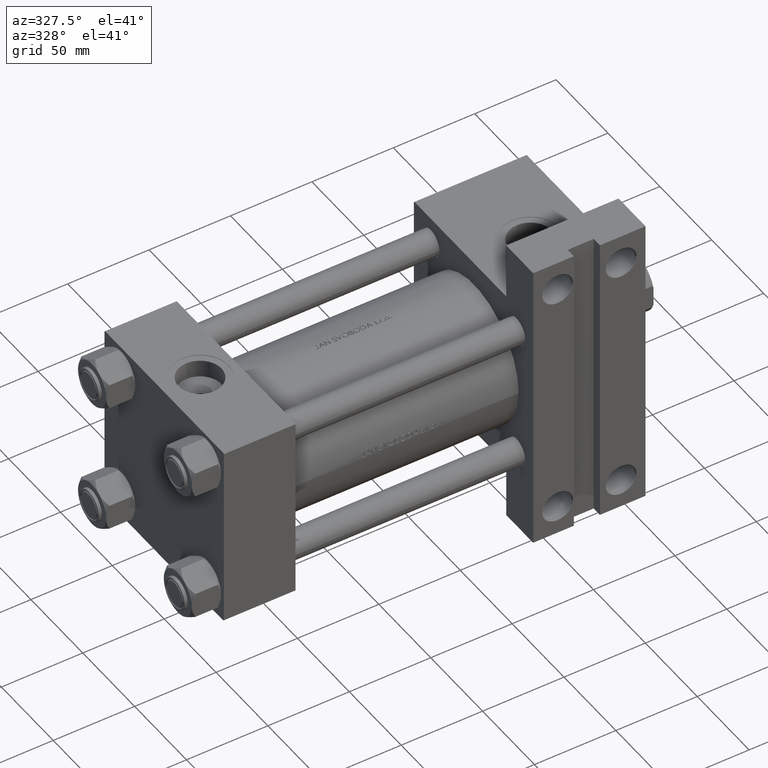
[diagram: clean part render]
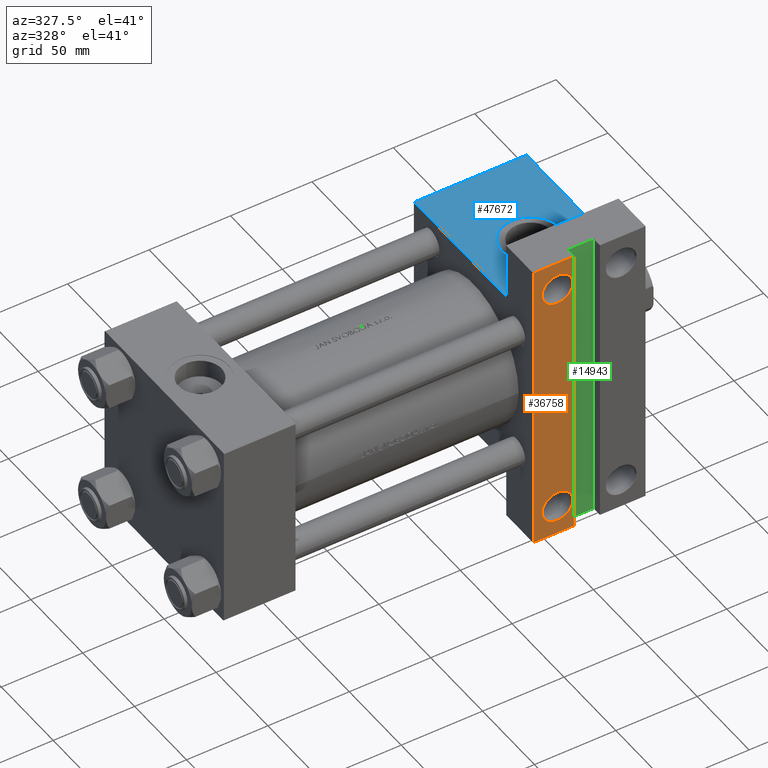
[diagram: same view with three faces highlighted in distinct colors, each labeled with its STEP entity id]
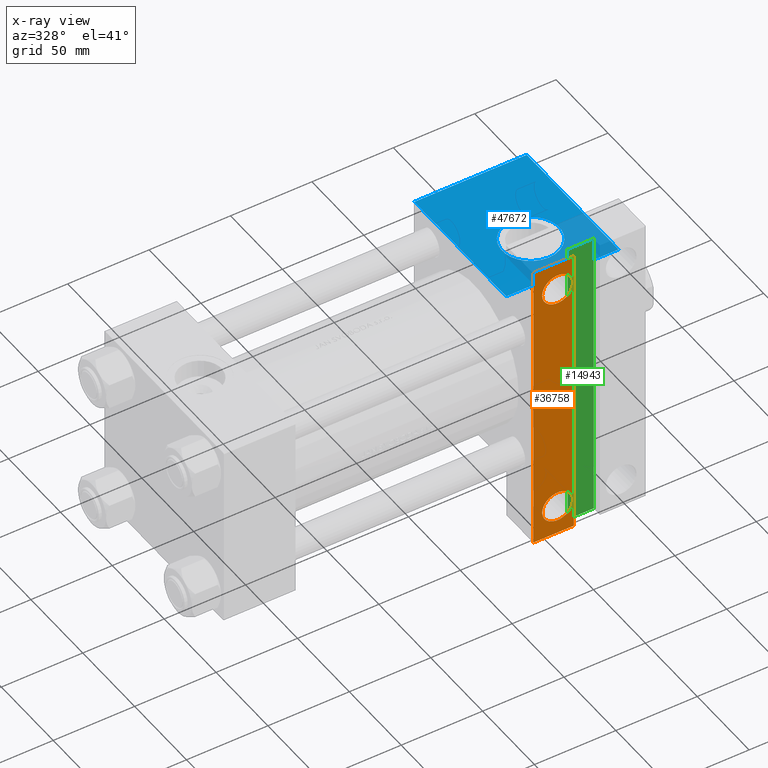
[diagram: x-ray of the same camera — body ghosted, the three highlighted faces saturated]
A machine part, auxiliary view with three faces highlighted in distinct colors.
The next image is the same camera in x-ray (body ghosted, the three faces saturated) — at least one of them is partly hidden behind the body in this view.
Their STEP definitions:

[orange] entity #36758 — the highlighted planar face has unit normal (0, -1, -0).
#1231 = FACE_BOUND ( 'NONE', #15356, .T. ) ;
#1783 = CARTESIAN_POINT ( 'NONE',  ( 214.4994999999999834, 74.50000000000001421, -57.49999999999996447 ) ) ;
#1895 = VECTOR ( 'NONE', #32173, 1000.000000000000000 ) ;
#1971 = EDGE_CURVE ( 'NONE', #38902, #10682, #19106, .T. ) ;
#2183 = CARTESIAN_POINT ( 'NONE',  ( 195.5005000000000450, -74.50000000000001421, -57.49999999999997868 ) ) ;
#2324 = EDGE_CURVE ( 'NONE', #46423, #10682, #31947, .T. ) ;
#2639 = VERTEX_POINT ( 'NONE', #2183 ) ;
#2747 = EDGE_CURVE ( 'NONE', #20262, #11767, #46171, .T. ) ;
#3040 = ORIENTED_EDGE ( 'NONE', *, *, #24185, .T. ) ;
#3435 = DIRECTION ( 'NONE',  ( 0.000000000000000000, 1.000000000000000000, 0.000000000000000000 ) ) ;
#5877 = AXIS2_PLACEMENT_3D ( 'NONE', #10976, #29494, #3435 ) ;
#6817 = EDGE_CURVE ( 'NONE', #29614, #2639, #47878, .T. ) ;
#8618 = CARTESIAN_POINT ( 'NONE',  ( 190.0000000000000000, -92.50000000000002842, -57.49999999999997158 ) ) ;
#10682 = VERTEX_POINT ( 'NONE', #12532 ) ;
#10976 = CARTESIAN_POINT ( 'NONE',  ( 205.0000000000000284, 74.50000000000001421, -57.49999999999996447 ) ) ;
#11207 = DIRECTION ( 'NONE',  ( 0.000000000000000000, 1.000000000000000000, 0.000000000000000000 ) ) ;
#11767 = VERTEX_POINT ( 'NONE', #1783 ) ;
#12097 = DIRECTION ( 'NONE',  ( 0.000000000000000000, 1.000000000000000000, 0.000000000000000000 ) ) ;
#12196 = DIRECTION ( 'NONE',  ( 0.000000000000000000, 1.000000000000000000, 1.206764157201257291E-16 ) ) ;
#12481 = ORIENTED_EDGE ( 'NONE', *, *, #6817, .T. ) ;
#12532 = CARTESIAN_POINT ( 'NONE',  ( 190.0000000000000000, -92.50000000000002842, -57.49999999999997158 ) ) ;
#14474 = CIRCLE ( 'NONE', #32380, 9.499499999999965638 ) ;
#15356 = EDGE_LOOP ( 'NONE', ( #29746, #12481 ) ) ;
#16093 = CARTESIAN_POINT ( 'NONE',  ( 214.9999999999999716, -92.50000000000002842, -57.49999999999997158 ) ) ;
#16160 = DIRECTION ( 'NONE',  ( -0.000000000000000000, -1.206764157201257291E-16, 1.000000000000000000 ) ) ;
#16585 = CARTESIAN_POINT ( 'NONE',  ( 259.0000000000000000, 57.50000000000000000, -57.49999999999996447 ) ) ;
#17626 = ORIENTED_EDGE ( 'NONE', *, *, #2747, .T. ) ;
#19106 = LINE ( 'NONE', #8618, #22859 ) ;
#19406 = LINE ( 'NONE', #34250, #32793 ) ;
#19856 = CIRCLE ( 'NONE', #5877, 9.499499999999965638 ) ;
#20128 = DIRECTION ( 'NONE',  ( 1.000000000000000000, -4.022547190670858131E-16, 0.000000000000000000 ) ) ;
#20262 = VERTEX_POINT ( 'NONE', #27153 ) ;
#22760 = ORIENTED_EDGE ( 'NONE', *, *, #2324, .F. ) ;
#22859 = VECTOR ( 'NONE', #31023, 1000.000000000000000 ) ;
#23389 = VECTOR ( 'NONE', #11207, 1000.000000000000000 ) ;
#24185 = EDGE_CURVE ( 'NONE', #11767, #20262, #19856, .T. ) ;
#26336 = EDGE_CURVE ( 'NONE', #2639, #29614, #14474, .T. ) ;
#27153 = CARTESIAN_POINT ( 'NONE',  ( 195.5005000000000450, 74.50000000000001421, -57.49999999999996447 ) ) ;
#27156 = AXIS2_PLACEMENT_3D ( 'NONE', #16585, #35323, #12196 ) ;
#28321 = AXIS2_PLACEMENT_3D ( 'NONE', #40375, #36247, #43284 ) ;
#28495 = AXIS2_PLACEMENT_3D ( 'NONE', #30845, #42023, #12097 ) ;
#29494 = DIRECTION ( 'NONE',  ( -0.000000000000000000, -1.206764157201257291E-16, 1.000000000000000000 ) ) ;
#29614 = VERTEX_POINT ( 'NONE', #32313 ) ;
#29720 = CARTESIAN_POINT ( 'NONE',  ( 214.9999999999999716, -92.50000000000002842, -57.49999999999997158 ) ) ;
#29746 = ORIENTED_EDGE ( 'NONE', *, *, #26336, .T. ) ;
#30512 = EDGE_LOOP ( 'NONE', ( #17626, #3040 ) ) ;
#30796 = VERTEX_POINT ( 'NONE', #42480 ) ;
#30845 = CARTESIAN_POINT ( 'NONE',  ( 205.0000000000000284, -74.50000000000001421, -57.49999999999997868 ) ) ;
#31023 = DIRECTION ( 'NONE',  ( -1.000000000000000000, -0.000000000000000000, -0.000000000000000000 ) ) ;
#31947 = LINE ( 'NONE', #46997, #1895 ) ;
#32173 = DIRECTION ( 'NONE',  ( 0.000000000000000000, -1.000000000000000000, -1.206764157201257291E-16 ) ) ;
#32313 = CARTESIAN_POINT ( 'NONE',  ( 214.4994999999999834, -74.50000000000001421, -57.49999999999997868 ) ) ;
#32380 = AXIS2_PLACEMENT_3D ( 'NONE', #36877, #16160, #38082 ) ;
#32793 = VECTOR ( 'NONE', #20128, 1000.000000000000000 ) ;
#33129 = LINE ( 'NONE', #29720, #23389 ) ;
#34250 = CARTESIAN_POINT ( 'NONE',  ( 190.0000000000000284, 92.50000000000000000, -57.49999999999997158 ) ) ;
#34834 = FACE_OUTER_BOUND ( 'NONE', #42254, .T. ) ;
#35323 = DIRECTION ( 'NONE',  ( 0.000000000000000000, 1.206764157201257291E-16, -1.000000000000000000 ) ) ;
#35563 = FACE_BOUND ( 'NONE', #30512, .T. ) ;
#35905 = ORIENTED_EDGE ( 'NONE', *, *, #1971, .T. ) ;
#36247 = DIRECTION ( 'NONE',  ( -0.000000000000000000, -1.206764157201257291E-16, 1.000000000000000000 ) ) ;
#36758 = ADVANCED_FACE ( 'NONE', ( #34834, #35563, #1231 ), #45527, .T. ) ;
#36877 = CARTESIAN_POINT ( 'NONE',  ( 205.0000000000000284, -74.50000000000001421, -57.49999999999997868 ) ) ;
#38082 = DIRECTION ( 'NONE',  ( 0.000000000000000000, 1.000000000000000000, 0.000000000000000000 ) ) ;
#38902 = VERTEX_POINT ( 'NONE', #16093 ) ;
#40375 = CARTESIAN_POINT ( 'NONE',  ( 205.0000000000000284, 74.50000000000001421, -57.49999999999996447 ) ) ;
#41400 = EDGE_CURVE ( 'NONE', #38902, #30796, #33129, .T. ) ;
#42023 = DIRECTION ( 'NONE',  ( -0.000000000000000000, -1.206764157201257291E-16, 1.000000000000000000 ) ) ;
#42254 = EDGE_LOOP ( 'NONE', ( #43994, #35905, #22760, #47266 ) ) ;
#42480 = CARTESIAN_POINT ( 'NONE',  ( 214.9999999999999716, 92.50000000000000000, -57.49999999999997158 ) ) ;
#42687 = EDGE_CURVE ( 'NONE', #46423, #30796, #19406, .T. ) ;
#43284 = DIRECTION ( 'NONE',  ( 0.000000000000000000, 1.000000000000000000, 0.000000000000000000 ) ) ;
#43994 = ORIENTED_EDGE ( 'NONE', *, *, #41400, .F. ) ;
#45527 = PLANE ( 'NONE',  #27156 ) ;
#46171 = CIRCLE ( 'NONE', #28321, 9.499499999999965638 ) ;
#46409 = CARTESIAN_POINT ( 'NONE',  ( 190.0000000000000284, 92.50000000000000000, -57.49999999999997158 ) ) ;
#46423 = VERTEX_POINT ( 'NONE', #46409 ) ;
#46997 = CARTESIAN_POINT ( 'NONE',  ( 190.0000000000000000, 57.50000000000000000, -57.49999999999996447 ) ) ;
#47266 = ORIENTED_EDGE ( 'NONE', *, *, #42687, .T. ) ;
#47878 = CIRCLE ( 'NONE', #28495, 9.499499999999965638 ) ;

[blue] entity #47672 — the highlighted planar face has unit normal (0, 0, -1).
#1540 = VECTOR ( 'NONE', #40761, 1000.000000000000000 ) ;
#3074 = EDGE_LOOP ( 'NONE', ( #18186, #45624, #35368, #16023 ) ) ;
#3501 = ORIENTED_EDGE ( 'NONE', *, *, #8047, .F. ) ;
#3771 = CARTESIAN_POINT ( 'NONE',  ( 259.0000000000000000, -57.49999999999999289, 57.49999999999999289 ) ) ;
#4081 = VERTEX_POINT ( 'NONE', #35120 ) ;
#4488 = DIRECTION ( 'NONE',  ( -0.000000000000000000, 1.000000000000000000, 0.000000000000000000 ) ) ;
#5165 = CARTESIAN_POINT ( 'NONE',  ( 259.0000000000000000, -57.49999999999999289, 57.00000000000002132 ) ) ;
#7666 = FACE_OUTER_BOUND ( 'NONE', #3074, .T. ) ;
#8047 = EDGE_CURVE ( 'NONE', #33988, #4081, #28516, .T. ) ;
#8805 = LINE ( 'NONE', #5165, #12073 ) ;
#10113 = CARTESIAN_POINT ( 'NONE',  ( 259.0000000000000000, -57.49999999999999289, 57.00000000000002132 ) ) ;
#11552 = CARTESIAN_POINT ( 'NONE',  ( 190.0000000000000000, -57.49999999999999289, 57.49999999999999289 ) ) ;
#12073 = VECTOR ( 'NONE', #42882, 1000.000000000000000 ) ;
#13097 = VERTEX_POINT ( 'NONE', #39702 ) ;
#14035 = DIRECTION ( 'NONE',  ( 0.000000000000000000, -1.000000000000000000, -8.673617379884036705E-17 ) ) ;
#14106 = DIRECTION ( 'NONE',  ( 0.000000000000000000, 0.000000000000000000, -1.000000000000000000 ) ) ;
#14807 = AXIS2_PLACEMENT_3D ( 'NONE', #3771, #4488, #22984 ) ;
#15418 = VERTEX_POINT ( 'NONE', #35787 ) ;
#16023 = ORIENTED_EDGE ( 'NONE', *, *, #33949, .T. ) ;
#17913 = CARTESIAN_POINT ( 'NONE',  ( 190.0000000000000000, -57.49999999999999289, -31.49999999999997158 ) ) ;
#18186 = ORIENTED_EDGE ( 'NONE', *, *, #28585, .F. ) ;
#18445 = AXIS2_PLACEMENT_3D ( 'NONE', #38825, #20078, #46336 ) ;
#20078 = DIRECTION ( 'NONE',  ( 0.000000000000000000, -1.000000000000000000, -8.673617379884036705E-17 ) ) ;
#21170 = CARTESIAN_POINT ( 'NONE',  ( 259.0000000000000000, -57.49999999999999289, 57.49999999999999289 ) ) ;
#22144 = CARTESIAN_POINT ( 'NONE',  ( 259.0000000000000000, -57.49999999999999289, -31.49999999999997158 ) ) ;
#22984 = DIRECTION ( 'NONE',  ( 0.000000000000000000, -0.000000000000000000, 1.000000000000000000 ) ) ;
#23220 = PLANE ( 'NONE',  #14807 ) ;
#24057 = EDGE_CURVE ( 'NONE', #39889, #13097, #8805, .T. ) ;
#26398 = VECTOR ( 'NONE', #32986, 1000.000000000000000 ) ;
#27971 = CIRCLE ( 'NONE', #34157, 17.50000000000002132 ) ;
#28516 = CIRCLE ( 'NONE', #18445, 17.50000000000002132 ) ;
#28585 = EDGE_CURVE ( 'NONE', #39889, #30259, #43295, .T. ) ;
#30259 = VERTEX_POINT ( 'NONE', #22144 ) ;
#32361 = ORIENTED_EDGE ( 'NONE', *, *, #45708, .F. ) ;
#32535 = DIRECTION ( 'NONE',  ( 0.000000000000000000, 0.000000000000000000, -1.000000000000000000 ) ) ;
#32986 = DIRECTION ( 'NONE',  ( 1.000000000000000000, -1.005636797667714163E-16, 0.000000000000000000 ) ) ;
#33949 = EDGE_CURVE ( 'NONE', #15418, #30259, #36645, .T. ) ;
#33988 = VERTEX_POINT ( 'NONE', #40043 ) ;
#34157 = AXIS2_PLACEMENT_3D ( 'NONE', #43469, #14035, #32535 ) ;
#35120 = CARTESIAN_POINT ( 'NONE',  ( 225.0000000000000284, -57.49999999999999289, 17.50000000000002132 ) ) ;
#35368 = ORIENTED_EDGE ( 'NONE', *, *, #38290, .T. ) ;
#35787 = CARTESIAN_POINT ( 'NONE',  ( 190.0000000000000000, -57.49999999999999289, -31.49999999999997158 ) ) ;
#36645 = LINE ( 'NONE', #17913, #26398 ) ;
#37279 = EDGE_LOOP ( 'NONE', ( #3501, #32361 ) ) ;
#38290 = EDGE_CURVE ( 'NONE', #13097, #15418, #44408, .T. ) ;
#38825 = CARTESIAN_POINT ( 'NONE',  ( 225.0000000000000284, -57.49999999999999289, 0.000000000000000000 ) ) ;
#39702 = CARTESIAN_POINT ( 'NONE',  ( 190.0000000000000000, -57.49999999999999289, 57.00000000000002132 ) ) ;
#39889 = VERTEX_POINT ( 'NONE', #10113 ) ;
#40043 = CARTESIAN_POINT ( 'NONE',  ( 225.0000000000000284, -57.49999999999999289, -17.50000000000002132 ) ) ;
#40761 = DIRECTION ( 'NONE',  ( 0.000000000000000000, 0.000000000000000000, -1.000000000000000000 ) ) ;
#42548 = VECTOR ( 'NONE', #14106, 1000.000000000000000 ) ;
#42882 = DIRECTION ( 'NONE',  ( -1.000000000000000000, 0.000000000000000000, 0.000000000000000000 ) ) ;
#43295 = LINE ( 'NONE', #21170, #42548 ) ;
#43469 = CARTESIAN_POINT ( 'NONE',  ( 225.0000000000000284, -57.49999999999999289, 0.000000000000000000 ) ) ;
#44408 = LINE ( 'NONE', #11552, #1540 ) ;
#45128 = FACE_BOUND ( 'NONE', #37279, .T. ) ;
#45624 = ORIENTED_EDGE ( 'NONE', *, *, #24057, .T. ) ;
#45708 = EDGE_CURVE ( 'NONE', #4081, #33988, #27971, .T. ) ;
#46336 = DIRECTION ( 'NONE',  ( 0.000000000000000000, 0.000000000000000000, -1.000000000000000000 ) ) ;
#47672 = ADVANCED_FACE ( 'NONE', ( #45128, #7666 ), #23220, .F. ) ;

[green] entity #14943 — the highlighted planar face has unit normal (0, -1, 0).
#4440 = PLANE ( 'NONE',  #44242 ) ;
#5529 = LINE ( 'NONE', #20377, #11585 ) ;
#5849 = ORIENTED_EDGE ( 'NONE', *, *, #15814, .T. ) ;
#5931 = LINE ( 'NONE', #9573, #15892 ) ;
#6034 = CARTESIAN_POINT ( 'NONE',  ( 214.9999999999999716, -92.50000000000002842, -51.49999999999997868 ) ) ;
#8942 = LINE ( 'NONE', #6034, #44582 ) ;
#9573 = CARTESIAN_POINT ( 'NONE',  ( 231.0000000000000000, -92.50000000000002842, -51.49999999999997868 ) ) ;
#9925 = VECTOR ( 'NONE', #42211, 1000.000000000000000 ) ;
#11585 = VECTOR ( 'NONE', #24265, 1000.000000000000000 ) ;
#13462 = DIRECTION ( 'NONE',  ( -0.000000000000000000, -1.000000000000000000, -0.000000000000000000 ) ) ;
#13788 = VERTEX_POINT ( 'NONE', #15215 ) ;
#13930 = CARTESIAN_POINT ( 'NONE',  ( 231.0000000000000000, 92.50000000000000000, -51.49999999999997868 ) ) ;
#14943 = ADVANCED_FACE ( 'NONE', ( #26374 ), #4440, .T. ) ;
#15215 = CARTESIAN_POINT ( 'NONE',  ( 214.9999999999999716, -92.50000000000002842, -51.49999999999997868 ) ) ;
#15645 = DIRECTION ( 'NONE',  ( 0.000000000000000000, 0.000000000000000000, -1.000000000000000000 ) ) ;
#15814 = EDGE_CURVE ( 'NONE', #36315, #13788, #8942, .T. ) ;
#15892 = VECTOR ( 'NONE', #13462, 1000.000000000000000 ) ;
#17967 = VERTEX_POINT ( 'NONE', #13930 ) ;
#20377 = CARTESIAN_POINT ( 'NONE',  ( 214.9999999999999716, 92.50000000000000000, -51.49999999999997868 ) ) ;
#21129 = CARTESIAN_POINT ( 'NONE',  ( 231.0000000000000000, -92.50000000000002842, -51.49999999999997868 ) ) ;
#22136 = EDGE_CURVE ( 'NONE', #17967, #36315, #5931, .T. ) ;
#23242 = ORIENTED_EDGE ( 'NONE', *, *, #35951, .T. ) ;
#23969 = CARTESIAN_POINT ( 'NONE',  ( 214.9999999999999716, -92.50000000000002842, -51.49999999999997868 ) ) ;
#24265 = DIRECTION ( 'NONE',  ( 1.000000000000000000, 0.000000000000000000, 0.000000000000000000 ) ) ;
#26185 = ORIENTED_EDGE ( 'NONE', *, *, #22136, .T. ) ;
#26374 = FACE_OUTER_BOUND ( 'NONE', #26662, .T. ) ;
#26662 = EDGE_LOOP ( 'NONE', ( #26185, #5849, #43411, #23242 ) ) ;
#27394 = LINE ( 'NONE', #23969, #9925 ) ;
#28819 = EDGE_CURVE ( 'NONE', #13788, #47960, #27394, .T. ) ;
#35951 = EDGE_CURVE ( 'NONE', #47960, #17967, #5529, .T. ) ;
#36315 = VERTEX_POINT ( 'NONE', #21129 ) ;
#41203 = DIRECTION ( 'NONE',  ( -1.000000000000000000, 0.000000000000000000, -0.000000000000000000 ) ) ;
#42211 = DIRECTION ( 'NONE',  ( 0.000000000000000000, 1.000000000000000000, 0.000000000000000000 ) ) ;
#43387 = CARTESIAN_POINT ( 'NONE',  ( 214.9999999999999716, 92.50000000000000000, -51.49999999999997868 ) ) ;
#43411 = ORIENTED_EDGE ( 'NONE', *, *, #28819, .T. ) ;
#44242 = AXIS2_PLACEMENT_3D ( 'NONE', #45801, #15645, #41203 ) ;
#44582 = VECTOR ( 'NONE', #46658, 1000.000000000000000 ) ;
#45801 = CARTESIAN_POINT ( 'NONE',  ( 0.000000000000000000, 0.000000000000000000, -51.49999999999997868 ) ) ;
#46658 = DIRECTION ( 'NONE',  ( -1.000000000000000000, -0.000000000000000000, -0.000000000000000000 ) ) ;
#47960 = VERTEX_POINT ( 'NONE', #43387 ) ;